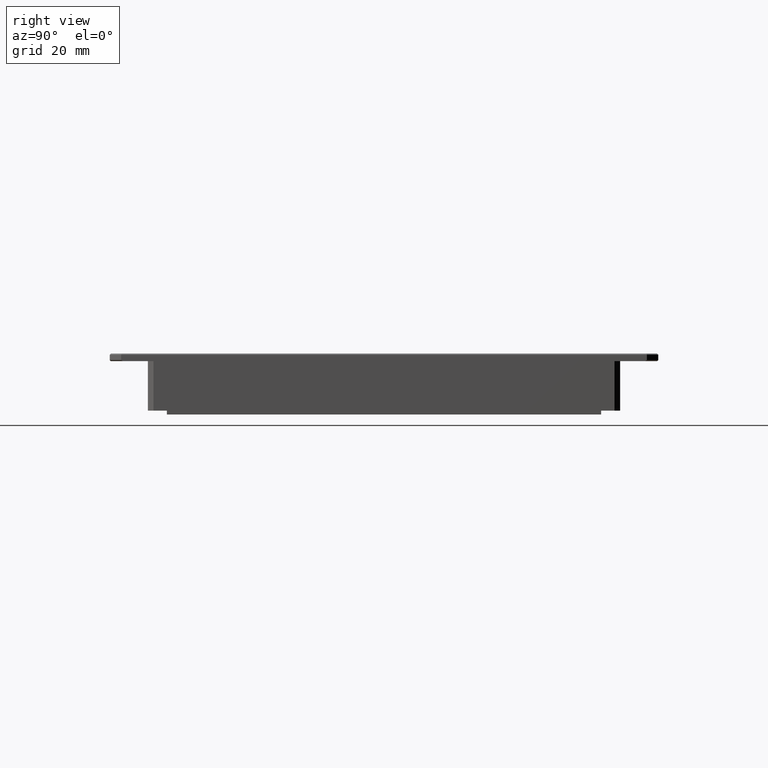
[diagram: clean part render]
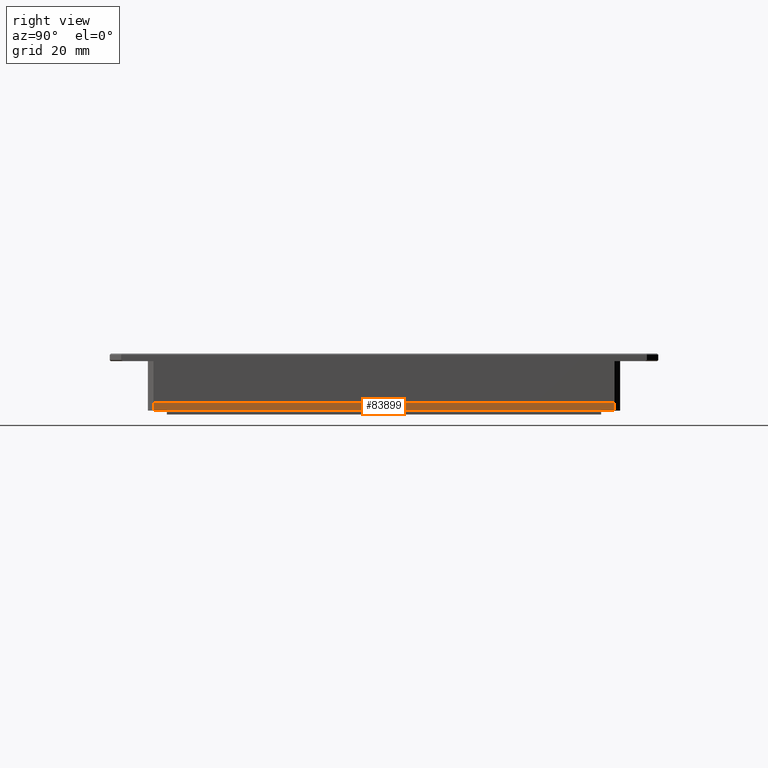
[diagram: same view with one face highlighted and labeled with its STEP entity id]
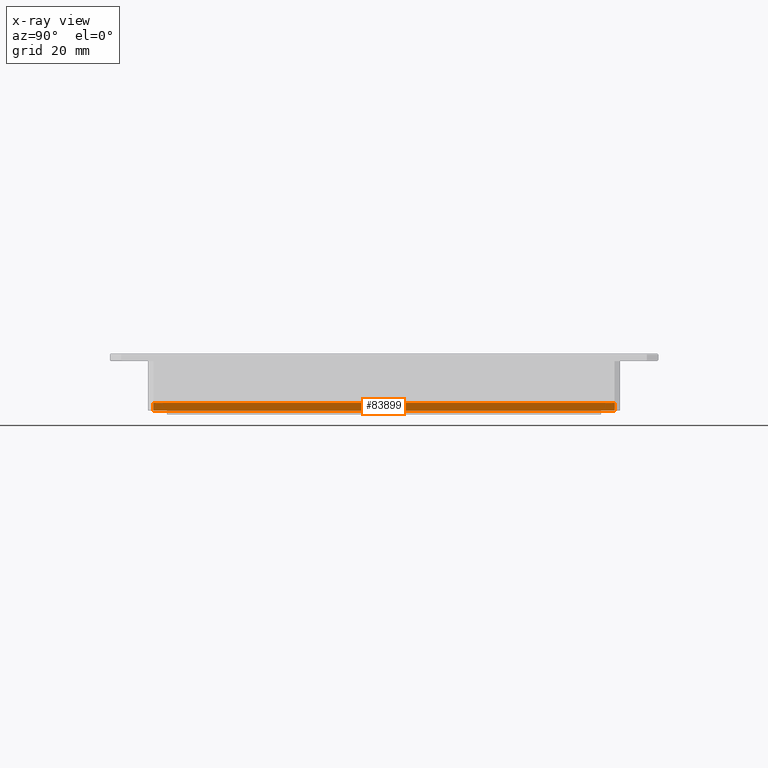
[diagram: x-ray of the same camera — body ghosted, the highlighted face saturated]
A machine part, right view. The second image highlights one B-rep face of the part: STEP entity #83899.
The next image is the same camera in x-ray: the body ghosted, the highlighted face saturated — about 0% of this face is hidden behind the body in this view.
In plain terms, the highlighted planar face has unit normal (-1, 0, 0).
Its self-contained STEP definition (entity closure, byte-faithful):
#5444 = ORIENTED_EDGE ( 'NONE', *, *, #70170, .T. ) ;
#7805 = VECTOR ( 'NONE', #37449, 1000.000000000000000 ) ;
#10371 = DIRECTION ( 'NONE',  ( 0.0000000000000000000, 0.0000000000000000000, 1.000000000000000000 ) ) ;
#12406 = EDGE_LOOP ( 'NONE', ( #52043, #70501, #5444, #36162 ) ) ;
#13891 = VECTOR ( 'NONE', #32127, 1000.000000000000000 ) ;
#14409 = VERTEX_POINT ( 'NONE', #15335 ) ;
#15335 = CARTESIAN_POINT ( 'NONE',  ( 62.64490263459336500, 71.38965253913708900, -2.000000000016370500 ) ) ;
#16674 = LINE ( 'NONE', #64923, #7805 ) ;
#24237 = CARTESIAN_POINT ( 'NONE',  ( 62.64490263459333600, -49.61034746086289700, -2.000000000016370500 ) ) ;
#28834 = VECTOR ( 'NONE', #31684, 1000.000000000000000 ) ;
#30958 = PLANE ( 'NONE',  #88690 ) ;
#31594 = DIRECTION ( 'NONE',  ( -1.000000000000000000, 2.220446049250313100E-016, 0.0000000000000000000 ) ) ;
#31684 = DIRECTION ( 'NONE',  ( -0.0000000000000000000, -0.0000000000000000000, 1.000000000000000000 ) ) ;
#31989 = CARTESIAN_POINT ( 'NONE',  ( 62.64490263459337900, 71.38965253913711700, -2.000000000016370500 ) ) ;
#32127 = DIRECTION ( 'NONE',  ( 2.220446049250313100E-016, 1.000000000000000000, 0.0000000000000000000 ) ) ;
#32618 = LINE ( 'NONE', #46076, #13891 ) ;
#36162 = ORIENTED_EDGE ( 'NONE', *, *, #48907, .F. ) ;
#36950 = VERTEX_POINT ( 'NONE', #39225 ) ;
#37449 = DIRECTION ( 'NONE',  ( -2.220446049250313100E-016, -1.000000000000000000, -0.0000000000000000000 ) ) ;
#39225 = CARTESIAN_POINT ( 'NONE',  ( 62.64490263459333600, -49.61034746086289700, -1.636993492148963700E-011 ) ) ;
#46076 = CARTESIAN_POINT ( 'NONE',  ( 62.64490263459336500, 72.88965253913708900, -1.637058544279312900E-011 ) ) ;
#47175 = EDGE_CURVE ( 'NONE', #80192, #36950, #55302, .T. ) ;
#48907 = EDGE_CURVE ( 'NONE', #36950, #54866, #32618, .T. ) ;
#52043 = ORIENTED_EDGE ( 'NONE', *, *, #47175, .F. ) ;
#54708 = FACE_OUTER_BOUND ( 'NONE', #12406, .T. ) ;
#54866 = VERTEX_POINT ( 'NONE', #63984 ) ;
#55302 = LINE ( 'NONE', #24237, #68583 ) ;
#57123 = CARTESIAN_POINT ( 'NONE',  ( 62.64490263459333600, -49.61034746086289700, -2.000000000016370500 ) ) ;
#60009 = CARTESIAN_POINT ( 'NONE',  ( 62.64490263459333600, -51.11034746086289700, -2.000000000016370500 ) ) ;
#63079 = EDGE_CURVE ( 'NONE', #14409, #80192, #16674, .T. ) ;
#63984 = CARTESIAN_POINT ( 'NONE',  ( 62.64490263459336500, 71.38965253913708900, -1.637036860235863100E-011 ) ) ;
#64923 = CARTESIAN_POINT ( 'NONE',  ( 62.64490263459333600, -51.11034746086289700, -2.000000000016370500 ) ) ;
#68583 = VECTOR ( 'NONE', #10371, 1000.000000000000000 ) ;
#70170 = EDGE_CURVE ( 'NONE', #14409, #54866, #81893, .T. ) ;
#70501 = ORIENTED_EDGE ( 'NONE', *, *, #63079, .F. ) ;
#80192 = VERTEX_POINT ( 'NONE', #57123 ) ;
#81893 = LINE ( 'NONE', #31989, #28834 ) ;
#83899 = ADVANCED_FACE ( 'NONE', ( #54708 ), #30958, .F. ) ;
#87486 = DIRECTION ( 'NONE',  ( 0.0000000000000000000, 0.0000000000000000000, 1.000000000000000000 ) ) ;
#88690 = AXIS2_PLACEMENT_3D ( 'NONE', #60009, #31594, #87486 ) ;